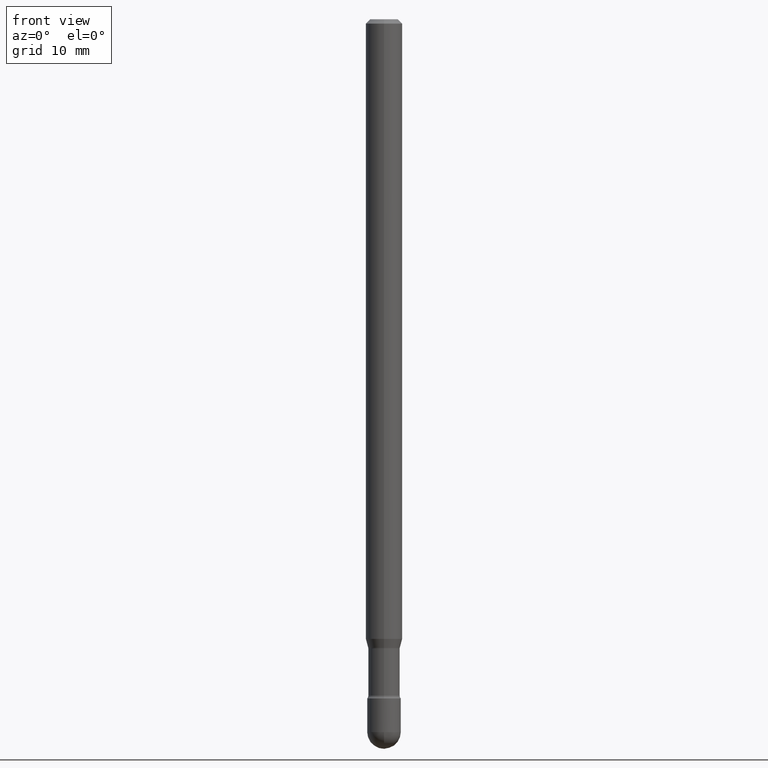
[diagram: clean part render]
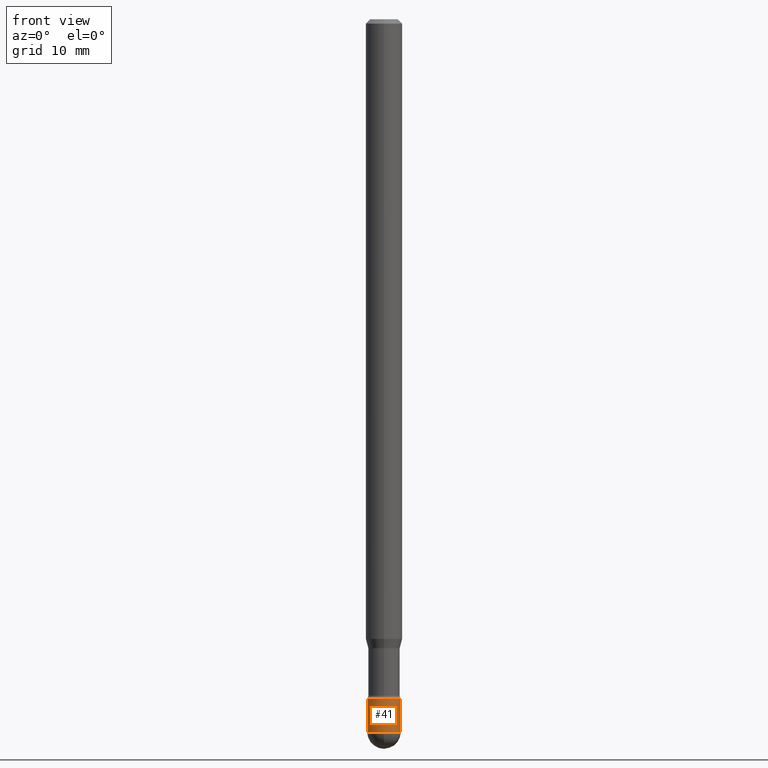
[diagram: same view with one face highlighted and labeled with its STEP entity id]
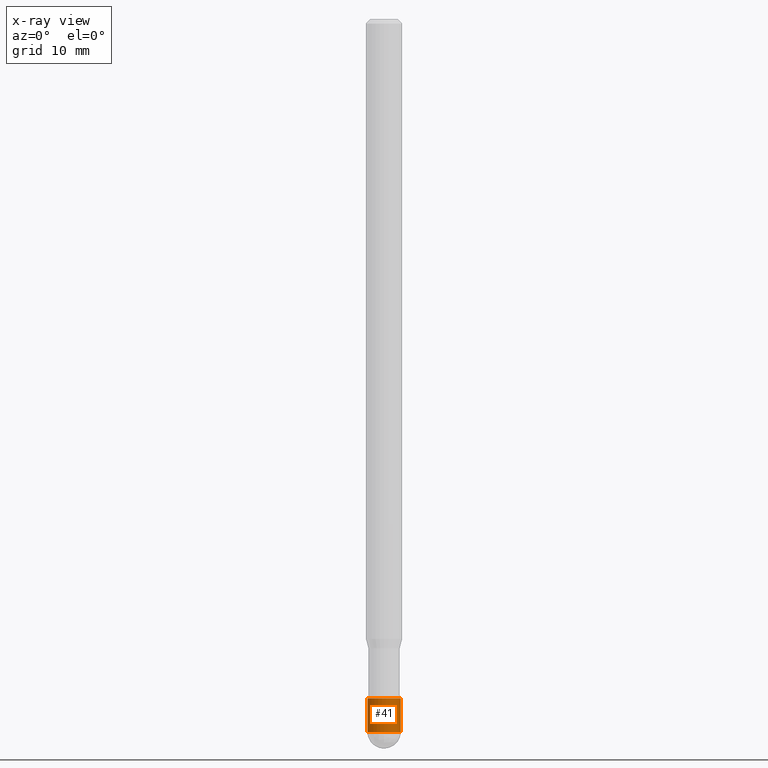
[diagram: x-ray of the same camera — body ghosted, the highlighted face saturated]
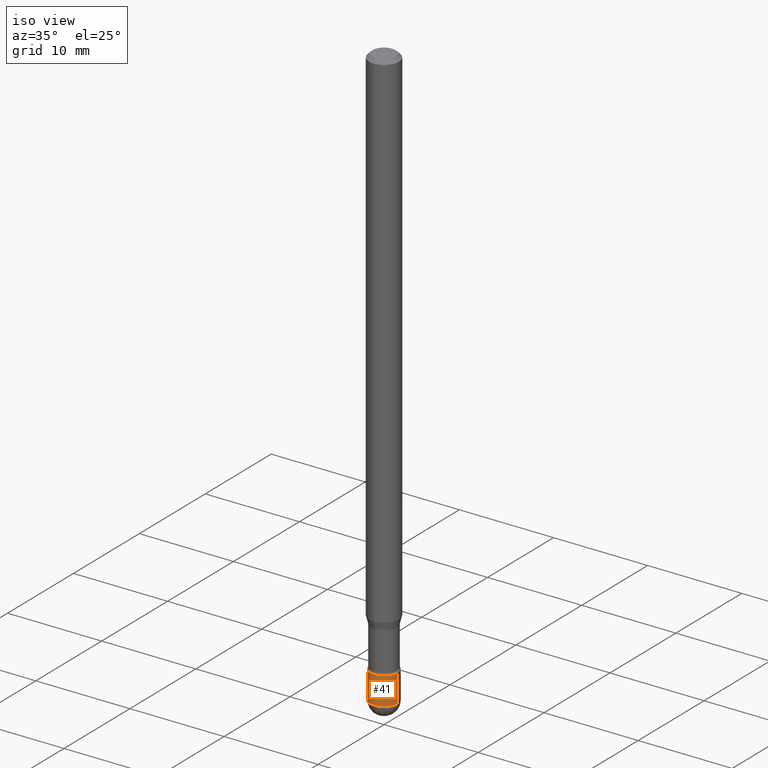
[diagram: same view with one face highlighted and labeled with its STEP entity id]
A machine part, front view. The second image highlights one B-rep face of the part: STEP entity #41.
The next image is the same camera in x-ray: the body ghosted, the highlighted face saturated — about 0% of this face is hidden behind the body in this view.
A second angle (iso view) of the same face is appended — the face is thin or edge-on in the first view.
In plain terms, the highlighted cylindrical surface (edge-blend (fillet) strip) has radius 1.4605 mm, axis along (-0, 0, 1).
Its self-contained STEP definition (entity closure, byte-faithful):
#15 = CARTESIAN_POINT ( 'NONE',  ( 0.05750000000000000250, -8.727830476773152219E-15, -2.442499999999999893 ) ) ;
#21 = VERTEX_POINT ( 'NONE', #203 ) ;
#24 = CIRCLE ( 'NONE', #411, 0.05750000000000000250 ) ;
#29 = DIRECTION ( 'NONE',  ( -2.445468806185136597E-29, 3.491481338843145583E-15, 1.000000000000000000 ) ) ;
#39 = CARTESIAN_POINT ( 'NONE',  ( 5.973057559107196227E-29, -8.527943170124383355E-15, -2.442499999999999893 ) ) ;
#41 = ADVANCED_FACE ( 'NONE', ( #505 ), #114, .T. ) ;
#52 = CIRCLE ( 'NONE', #508, 0.05750000000000000250 ) ;
#71 = EDGE_LOOP ( 'NONE', ( #123, #214, #193, #512, #529 ) ) ;
#78 = CARTESIAN_POINT ( 'NONE',  ( 0.000000000000000000, 0.000000000000000000, 0.000000000000000000 ) ) ;
#81 = DIRECTION ( 'NONE',  ( -2.445468806185136597E-29, 3.491481338843145583E-15, 1.000000000000000000 ) ) ;
#100 = DIRECTION ( 'NONE',  ( -2.445468806185136597E-29, 3.491481338843145583E-15, 1.000000000000000000 ) ) ;
#107 = AXIS2_PLACEMENT_3D ( 'NONE', #78, #297, #119 ) ;
#114 = CYLINDRICAL_SURFACE ( 'NONE', #107, 0.05750000000000000250 ) ;
#119 = DIRECTION ( 'NONE',  ( 1.000000000000000000, -6.982962677686265922E-15, 4.876176775795935232E-29 ) ) ;
#123 = ORIENTED_EDGE ( 'NONE', *, *, #419, .F. ) ;
#158 = CARTESIAN_POINT ( 'NONE',  ( 5.690605911992812897E-29, -8.124677075487999464E-15, -2.326999999999999957 ) ) ;
#162 = VERTEX_POINT ( 'NONE', #523 ) ;
#193 = ORIENTED_EDGE ( 'NONE', *, *, #254, .T. ) ;
#203 = CARTESIAN_POINT ( 'NONE',  ( -4.085620730619980656E-16, -0.05750000000000856509, -2.442499999999999893 ) ) ;
#210 = EDGE_CURVE ( 'NONE', #304, #241, #528, .T. ) ;
#214 = ORIENTED_EDGE ( 'NONE', *, *, #338, .T. ) ;
#228 = CARTESIAN_POINT ( 'NONE',  ( 5.973057559107196227E-29, -8.527943170124383355E-15, -2.442499999999999893 ) ) ;
#229 = AXIS2_PLACEMENT_3D ( 'NONE', #158, #29, #423 ) ;
#239 = DIRECTION ( 'NONE',  ( 1.000000000000000000, -6.982962677686273810E-15, 0.000000000000000000 ) ) ;
#241 = VERTEX_POINT ( 'NONE', #438 ) ;
#251 = VERTEX_POINT ( 'NONE', #269 ) ;
#254 = EDGE_CURVE ( 'NONE', #21, #304, #52, .T. ) ;
#255 = VECTOR ( 'NONE', #551, 39.37007874015748143 ) ;
#269 = CARTESIAN_POINT ( 'NONE',  ( -0.05750000000000000250, -7.917748049744133834E-15, -2.442499999999999893 ) ) ;
#297 = DIRECTION ( 'NONE',  ( -2.445468806185136597E-29, 3.491481338843145583E-15, 1.000000000000000000 ) ) ;
#304 = VERTEX_POINT ( 'NONE', #15 ) ;
#305 = VECTOR ( 'NONE', #442, 39.37007874015748143 ) ;
#318 = CIRCLE ( 'NONE', #229, 0.05750000000000000250 ) ;
#338 = EDGE_CURVE ( 'NONE', #251, #21, #24, .T. ) ;
#381 = CARTESIAN_POINT ( 'NONE',  ( -0.05750000000000000250, 4.085620730620576246E-16, -2.828387676896570712E-30 ) ) ;
#409 = DIRECTION ( 'NONE',  ( 1.000000000000000000, -6.982962677686273810E-15, 0.000000000000000000 ) ) ;
#411 = AXIS2_PLACEMENT_3D ( 'NONE', #228, #100, #239 ) ;
#419 = EDGE_CURVE ( 'NONE', #251, #162, #506, .T. ) ;
#423 = DIRECTION ( 'NONE',  ( 1.000000000000000000, -6.982962677686273810E-15, 0.000000000000000000 ) ) ;
#438 = CARTESIAN_POINT ( 'NONE',  ( 0.05750000000000000250, -8.526197429454961062E-15, -2.326999999999999957 ) ) ;
#442 = DIRECTION ( 'NONE',  ( -2.445468806185136877E-29, 3.491481338843145188E-15, 1.000000000000000000 ) ) ;
#448 = EDGE_CURVE ( 'NONE', #162, #241, #318, .T. ) ;
#477 = CARTESIAN_POINT ( 'NONE',  ( 0.05750000000000000250, -4.015203539669603161E-16, 2.803801646082662941E-30 ) ) ;
#505 = FACE_OUTER_BOUND ( 'NONE', #71, .T. ) ;
#506 = LINE ( 'NONE', #381, #255 ) ;
#508 = AXIS2_PLACEMENT_3D ( 'NONE', #39, #81, #409 ) ;
#512 = ORIENTED_EDGE ( 'NONE', *, *, #210, .T. ) ;
#523 = CARTESIAN_POINT ( 'NONE',  ( -0.05750000000000000250, -7.917748049744133834E-15, -2.326999999999999957 ) ) ;
#528 = LINE ( 'NONE', #477, #305 ) ;
#529 = ORIENTED_EDGE ( 'NONE', *, *, #448, .F. ) ;
#551 = DIRECTION ( 'NONE',  ( -2.445468806185136877E-29, 3.491481338843145188E-15, 1.000000000000000000 ) ) ;